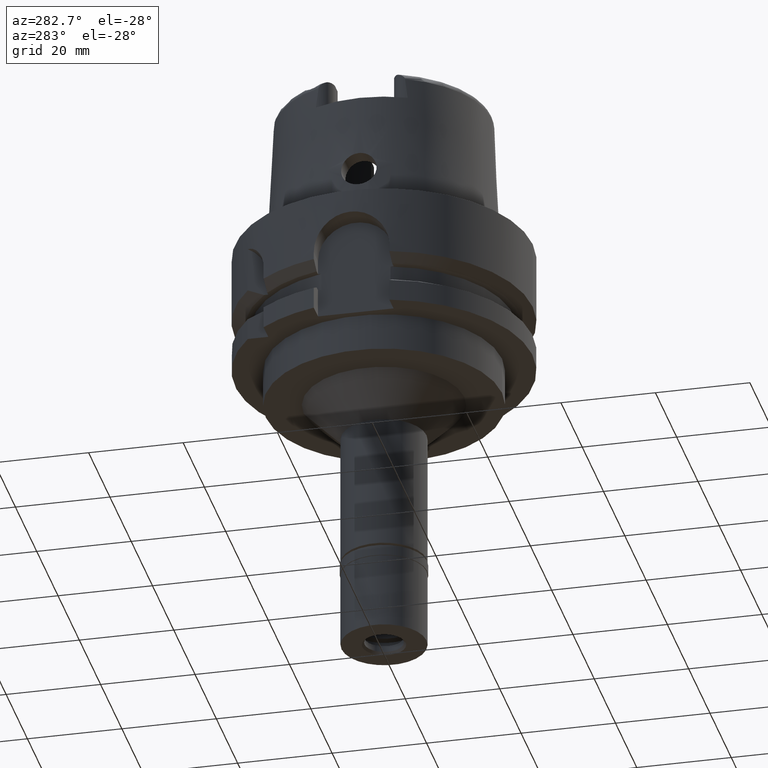
[diagram: clean part render]
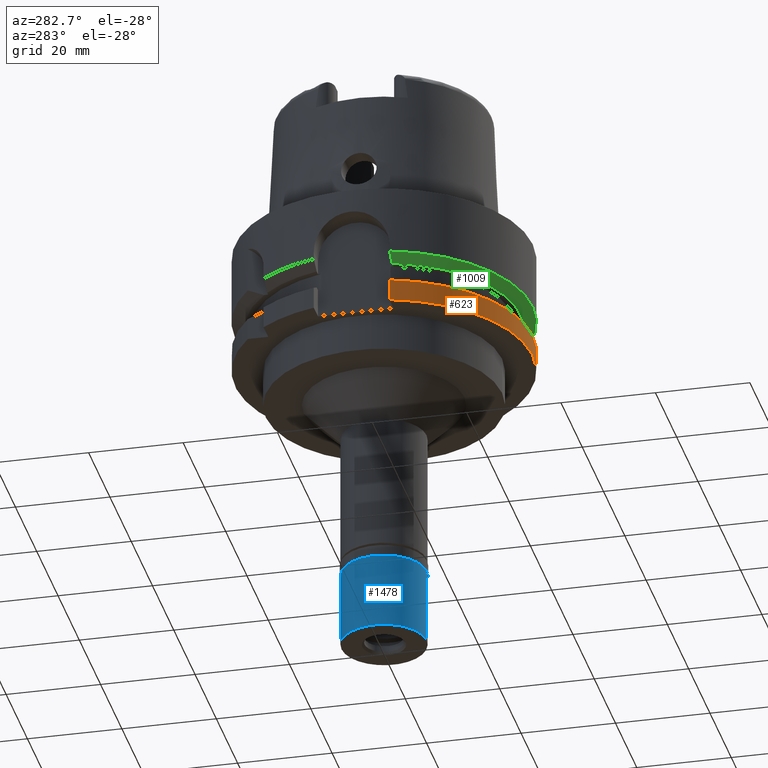
[diagram: same view with three faces highlighted in distinct colors, each labeled with its STEP entity id]
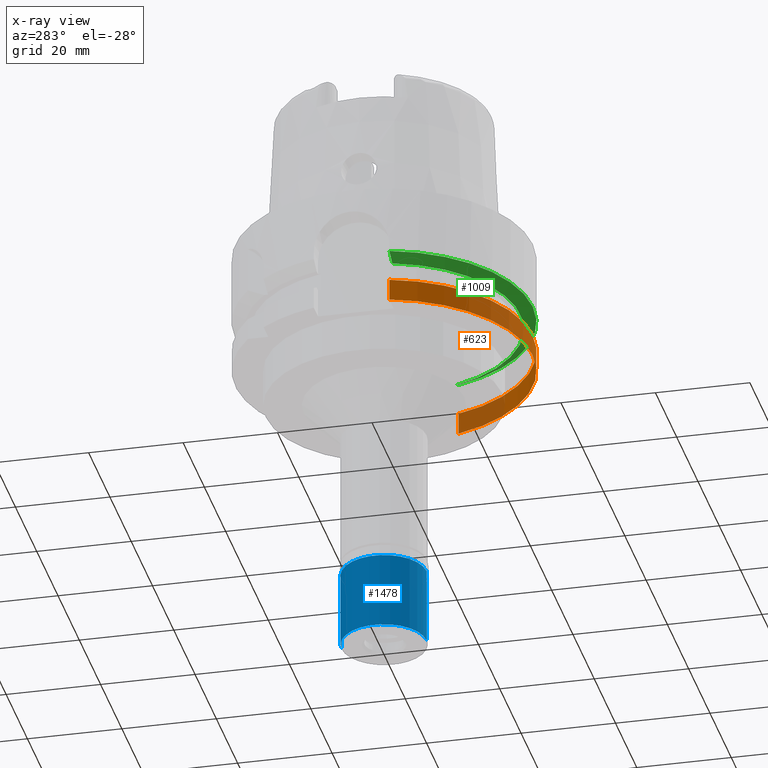
[diagram: x-ray of the same camera — body ghosted, the three highlighted faces saturated]
A machine part, auxiliary view with three faces highlighted in distinct colors.
The next image is the same camera in x-ray (body ghosted, the three faces saturated) — at least one of them is partly hidden behind the body in this view.
Their STEP definitions:

[orange] entity #623 — the highlighted cylindrical surface (partial cylindrical patch) has radius 31.5 mm, axis along (0, 0, 1).
#122 = CARTESIAN_POINT ( 'NONE',  ( -30.46719547316000032, -8.000000000000000000, -26.00000000000000000 ) ) ;
#228 = EDGE_CURVE ( 'NONE', #4368, #484, #4044, .T. ) ;
#404 = DIRECTION ( 'NONE',  ( -9.413870746034984296E-09, -3.157479205832998726E-08, -0.9999999999999994449 ) ) ;
#444 = ORIENTED_EDGE ( 'NONE', *, *, #551, .F. ) ;
#484 = VERTEX_POINT ( 'NONE', #5530 ) ;
#551 = EDGE_CURVE ( 'NONE', #2174, #484, #4652, .T. ) ;
#575 = EDGE_LOOP ( 'NONE', ( #3183, #4124, #444, #2539 ) ) ;
#623 = ADVANCED_FACE ( 'NONE', ( #2973 ), #2182, .T. ) ;
#679 = VECTOR ( 'NONE', #4453, 1000.000000000000114 ) ;
#828 = EDGE_CURVE ( 'NONE', #2174, #4976, #1353, .T. ) ;
#1034 = DIRECTION ( 'NONE',  ( 0.0000000000000000000, 0.0000000000000000000, -1.000000000000000000 ) ) ;
#1119 = CARTESIAN_POINT ( 'NONE',  ( 30.18691769625000276, -9.000000000000000000, -21.37749907476000288 ) ) ;
#1353 = CIRCLE ( 'NONE', #4939, 31.49999999999999645 ) ;
#1602 = AXIS2_PLACEMENT_3D ( 'NONE', #2764, #4026, #3134 ) ;
#1702 = CARTESIAN_POINT ( 'NONE',  ( 30.18691773976000192, -8.999999854045000802, -21.37749789754999696 ) ) ;
#2066 = CARTESIAN_POINT ( 'NONE',  ( 0.0000000000000000000, 0.0000000000000000000, -91.27000000000001023 ) ) ;
#2174 = VERTEX_POINT ( 'NONE', #1119 ) ;
#2182 = CYLINDRICAL_SURFACE ( 'NONE', #2595, 31.50000000000000000 ) ;
#2539 = ORIENTED_EDGE ( 'NONE', *, *, #828, .T. ) ;
#2595 = AXIS2_PLACEMENT_3D ( 'NONE', #2066, #4702, #2998 ) ;
#2707 = CARTESIAN_POINT ( 'NONE',  ( 0.0000000000000000000, 0.0000000000000000000, -21.37749907476000288 ) ) ;
#2764 = CARTESIAN_POINT ( 'NONE',  ( 0.0000000000000000000, 0.0000000000000000000, -26.00000000000000000 ) ) ;
#2973 = FACE_OUTER_BOUND ( 'NONE', #575, .T. ) ;
#2998 = DIRECTION ( 'NONE',  ( 0.0000000000000000000, 1.000000000000000000, 0.0000000000000000000 ) ) ;
#3127 = LINE ( 'NONE', #3560, #679 ) ;
#3134 = DIRECTION ( 'NONE',  ( 0.0000000000000000000, -1.000000000000000000, 0.0000000000000000000 ) ) ;
#3183 = ORIENTED_EDGE ( 'NONE', *, *, #4895, .F. ) ;
#3560 = CARTESIAN_POINT ( 'NONE',  ( -30.46719547316000032, -8.000000000000000000, -26.00000000000000000 ) ) ;
#4026 = DIRECTION ( 'NONE',  ( 0.0000000000000000000, 0.0000000000000000000, 1.000000000000000000 ) ) ;
#4044 = CIRCLE ( 'NONE', #1602, 31.50000000000000000 ) ;
#4124 = ORIENTED_EDGE ( 'NONE', *, *, #228, .T. ) ;
#4242 = VECTOR ( 'NONE', #404, 1000.000000000000114 ) ;
#4368 = VERTEX_POINT ( 'NONE', #122 ) ;
#4453 = DIRECTION ( 'NONE',  ( 2.698236637206970135E-08, -1.027599308913988117E-07, 0.9999999999999943379 ) ) ;
#4652 = LINE ( 'NONE', #1702, #4242 ) ;
#4702 = DIRECTION ( 'NONE',  ( 0.0000000000000000000, 0.0000000000000000000, 1.000000000000000000 ) ) ;
#4774 = CARTESIAN_POINT ( 'NONE',  ( -30.46719534843999710, -8.000000475007999157, -21.37750338698999641 ) ) ;
#4895 = EDGE_CURVE ( 'NONE', #4368, #4976, #3127, .T. ) ;
#4939 = AXIS2_PLACEMENT_3D ( 'NONE', #2707, #1034, #5296 ) ;
#4976 = VERTEX_POINT ( 'NONE', #4774 ) ;
#5296 = DIRECTION ( 'NONE',  ( 0.9583148474999051425, -0.2857142857143015191, 0.0000000000000000000 ) ) ;
#5530 = CARTESIAN_POINT ( 'NONE',  ( 30.18691769625000276, -9.000000000000000000, -26.00000000000000000 ) ) ;

[blue] entity #1478 — the highlighted cylindrical surface (partial cylindrical patch) has radius 9 mm, axis along (0, 0, 1).
#43 = CARTESIAN_POINT ( 'NONE',  ( 0.0000000000000000000, 0.0000000000000000000, -2.299999999999999822 ) ) ;
#223 = DIRECTION ( 'NONE',  ( 0.0000000000000000000, 0.0000000000000000000, 1.000000000000000000 ) ) ;
#539 = CARTESIAN_POINT ( 'NONE',  ( 0.0000000000000000000, 9.000000000000000000, -2.299999999999999822 ) ) ;
#633 = DIRECTION ( 'NONE',  ( 0.0000000000000000000, 1.000000000000000000, 0.0000000000000000000 ) ) ;
#781 = FACE_OUTER_BOUND ( 'NONE', #2742, .T. ) ;
#963 = EDGE_CURVE ( 'NONE', #1828, #3685, #4514, .T. ) ;
#1003 = LINE ( 'NONE', #539, #4352 ) ;
#1233 = ORIENTED_EDGE ( 'NONE', *, *, #3831, .F. ) ;
#1246 = DIRECTION ( 'NONE',  ( 0.0000000000000000000, 0.0000000000000000000, -1.000000000000000000 ) ) ;
#1339 = LINE ( 'NONE', #3072, #3422 ) ;
#1478 = ADVANCED_FACE ( 'NONE', ( #781 ), #3346, .T. ) ;
#1761 = DIRECTION ( 'NONE',  ( 0.0000000000000000000, -1.000000000000000000, 0.0000000000000000000 ) ) ;
#1828 = VERTEX_POINT ( 'NONE', #3082 ) ;
#1860 = VERTEX_POINT ( 'NONE', #5202 ) ;
#2113 = CARTESIAN_POINT ( 'NONE',  ( 0.0000000000000000000, 0.0000000000000000000, -19.42500000000000071 ) ) ;
#2178 = DIRECTION ( 'NONE',  ( 0.0000000000000000000, 0.0000000000000000000, -1.000000000000000000 ) ) ;
#2506 = AXIS2_PLACEMENT_3D ( 'NONE', #4174, #223, #633 ) ;
#2605 = AXIS2_PLACEMENT_3D ( 'NONE', #2113, #5454, #4612 ) ;
#2742 = EDGE_LOOP ( 'NONE', ( #4301, #1233, #5535, #5501 ) ) ;
#3072 = CARTESIAN_POINT ( 'NONE',  ( 0.0000000000000000000, -9.000000000000000000, -2.299999999999999822 ) ) ;
#3082 = CARTESIAN_POINT ( 'NONE',  ( 0.0000000000000000000, 9.000000000000000000, -18.50000000000000000 ) ) ;
#3345 = CIRCLE ( 'NONE', #5505, 9.000000000000000000 ) ;
#3346 = CYLINDRICAL_SURFACE ( 'NONE', #2605, 9.000000000000000000 ) ;
#3422 = VECTOR ( 'NONE', #3583, 1000.000000000000000 ) ;
#3583 = DIRECTION ( 'NONE',  ( 0.0000000000000000000, 0.0000000000000000000, -1.000000000000000000 ) ) ;
#3685 = VERTEX_POINT ( 'NONE', #4699 ) ;
#3721 = EDGE_CURVE ( 'NONE', #4354, #1828, #1003, .T. ) ;
#3831 = EDGE_CURVE ( 'NONE', #1860, #3685, #1339, .T. ) ;
#4174 = CARTESIAN_POINT ( 'NONE',  ( 0.0000000000000000000, 0.0000000000000000000, -18.50000000000000000 ) ) ;
#4301 = ORIENTED_EDGE ( 'NONE', *, *, #963, .T. ) ;
#4352 = VECTOR ( 'NONE', #2178, 1000.000000000000000 ) ;
#4354 = VERTEX_POINT ( 'NONE', #5301 ) ;
#4514 = CIRCLE ( 'NONE', #2506, 9.000000000000000000 ) ;
#4612 = DIRECTION ( 'NONE',  ( 0.0000000000000000000, 1.000000000000000000, 0.0000000000000000000 ) ) ;
#4699 = CARTESIAN_POINT ( 'NONE',  ( 0.0000000000000000000, -9.000000000000000000, -18.50000000000000000 ) ) ;
#5202 = CARTESIAN_POINT ( 'NONE',  ( 0.0000000000000000000, -9.000000000000000000, -2.299999999999999822 ) ) ;
#5301 = CARTESIAN_POINT ( 'NONE',  ( 0.0000000000000000000, 9.000000000000000000, -2.299999999999999822 ) ) ;
#5392 = EDGE_CURVE ( 'NONE', #1860, #4354, #3345, .T. ) ;
#5454 = DIRECTION ( 'NONE',  ( 0.0000000000000000000, 0.0000000000000000000, 1.000000000000000000 ) ) ;
#5501 = ORIENTED_EDGE ( 'NONE', *, *, #3721, .T. ) ;
#5505 = AXIS2_PLACEMENT_3D ( 'NONE', #43, #1246, #1761 ) ;
#5535 = ORIENTED_EDGE ( 'NONE', *, *, #5392, .T. ) ;

[green] entity #1009 — the highlighted conical surface has half-angle 60 deg.
#82 = CARTESIAN_POINT ( 'NONE',  ( -29.55118244830999785, -7.999999797362000287, -15.13368968643999857 ) ) ;
#281 = EDGE_CURVE ( 'NONE', #1130, #2034, #3401, .T. ) ;
#457 = DIRECTION ( 'NONE',  ( 0.0000000000000000000, -1.000000000000000000, 0.0000000000000000000 ) ) ;
#550 = CARTESIAN_POINT ( 'NONE',  ( 27.46036355747000357, -8.999999271202000273, -16.12500000000000000 ) ) ;
#1009 = ADVANCED_FACE ( 'NONE', ( #3209 ), #3412, .T. ) ;
#1017 = CARTESIAN_POINT ( 'NONE',  ( 28.35135727712999909, -9.000000320644000240, -15.63565380695999885 ) ) ;
#1092 = DIRECTION ( 'NONE',  ( 0.0000000000000000000, 1.000000000000000000, 0.0000000000000000000 ) ) ;
#1127 = DIRECTION ( 'NONE',  ( 0.0000000000000000000, 0.0000000000000000000, 1.000000000000000000 ) ) ;
#1130 = VERTEX_POINT ( 'NONE', #4315 ) ;
#1244 = VERTEX_POINT ( 'NONE', #3665 ) ;
#1340 = CARTESIAN_POINT ( 'NONE',  ( -28.65151280223000185, -7.999999996707999550, -15.63453803196999914 ) ) ;
#1394 = CARTESIAN_POINT ( 'NONE',  ( -30.46719534842999977, -8.000000475015998092, -14.62249661310000093 ) ) ;
#1481 = B_SPLINE_CURVE_WITH_KNOTS ( 'NONE', 3,
 ( #2710, #4382, #5195, #1017, #1838, #550 ),
 .UNSPECIFIED., .F., .F.,
 ( 4, 1, 1, 4 ),
 ( 0.0000000000000000000, 0.3333333333333000081, 0.6666666666667000474, 1.000000000000000000 ),
 .UNSPECIFIED. ) ;
#1500 = CARTESIAN_POINT ( 'NONE',  ( 0.0000000000000000000, 0.0000000000000000000, -15.37375046262000033 ) ) ;
#1563 = DIRECTION ( 'NONE',  ( 0.0000000000000000000, -1.000000000000000000, 0.0000000000000000000 ) ) ;
#1666 = ORIENTED_EDGE ( 'NONE', *, *, #5027, .F. ) ;
#1800 = CARTESIAN_POINT ( 'NONE',  ( -30.16029589048000048, -8.000000475015998092, -14.79387553791999999 ) ) ;
#1831 = CARTESIAN_POINT ( 'NONE',  ( -27.76816325293000176, -8.000000142773998846, -16.12500000000000000 ) ) ;
#1838 = CARTESIAN_POINT ( 'NONE',  ( 27.75565632109000092, -8.999999271202000273, -15.96299194532000243 ) ) ;
#1842 = CARTESIAN_POINT ( 'NONE',  ( 27.46036355747000357, -8.999999271202000273, -16.12500000000000000 ) ) ;
#1902 = EDGE_CURVE ( 'NONE', #2044, #3991, #3300, .T. ) ;
#2033 = CARTESIAN_POINT ( 'NONE',  ( -30.46719534842999977, -8.000000475015998092, -14.62249661310000093 ) ) ;
#2034 = VERTEX_POINT ( 'NONE', #1842 ) ;
#2044 = VERTEX_POINT ( 'NONE', #2033 ) ;
#2127 = ORIENTED_EDGE ( 'NONE', *, *, #3663, .F. ) ;
#2139 = ORIENTED_EDGE ( 'NONE', *, *, #4429, .F. ) ;
#2554 = DIRECTION ( 'NONE',  ( 0.0000000000000000000, 0.0000000000000000000, 1.000000000000000000 ) ) ;
#2582 = CARTESIAN_POINT ( 'NONE',  ( 0.0000000000000000000, 0.0000000000000000000, -14.62250092523999889 ) ) ;
#2593 = DIRECTION ( 'NONE',  ( 0.0000000000000000000, 0.0000000000000000000, 1.000000000000000000 ) ) ;
#2594 = CARTESIAN_POINT ( 'NONE',  ( -28.06106258786000041, -8.000000142773998846, -15.96250378841000028 ) ) ;
#2628 = B_SPLINE_CURVE_WITH_KNOTS ( 'NONE', 3,
 ( #1831, #2594, #1340, #82, #1800, #1394 ),
 .UNSPECIFIED., .F., .F.,
 ( 4, 1, 1, 4 ),
 ( 0.0000000000000000000, 0.3333333333333000081, 0.6666666666667000474, 1.000000000000000000 ),
 .UNSPECIFIED. ) ;
#2681 = EDGE_LOOP ( 'NONE', ( #1666, #4116, #2139, #2127, #2984 ) ) ;
#2710 = CARTESIAN_POINT ( 'NONE',  ( 30.18691773976999926, -8.999999854034999913, -14.62250210248000037 ) ) ;
#2874 = AXIS2_PLACEMENT_3D ( 'NONE', #1500, #4510, #1092 ) ;
#2984 = ORIENTED_EDGE ( 'NONE', *, *, #1902, .F. ) ;
#3209 = FACE_OUTER_BOUND ( 'NONE', #2681, .T. ) ;
#3300 = CIRCLE ( 'NONE', #5453, 31.50000000000000000 ) ;
#3401 = CIRCLE ( 'NONE', #3953, 28.89759526419000224 ) ;
#3412 = CONICAL_SURFACE ( 'NONE', #2874, 30.19879763209999979, 1.047197551196400456 ) ;
#3663 = EDGE_CURVE ( 'NONE', #3991, #1244, #4166, .T. ) ;
#3665 = CARTESIAN_POINT ( 'NONE',  ( 30.18691773976999926, -8.999999854034999913, -14.62250210248000037 ) ) ;
#3739 = CARTESIAN_POINT ( 'NONE',  ( 0.0000000000000000000, 0.0000000000000000000, -16.12500000000000000 ) ) ;
#3953 = AXIS2_PLACEMENT_3D ( 'NONE', #3739, #1127, #1563 ) ;
#3991 = VERTEX_POINT ( 'NONE', #4099 ) ;
#4099 = CARTESIAN_POINT ( 'NONE',  ( 0.0000000000000000000, -31.50000000000000000, -14.62250092523999889 ) ) ;
#4116 = ORIENTED_EDGE ( 'NONE', *, *, #281, .T. ) ;
#4166 = CIRCLE ( 'NONE', #5043, 31.50000000000000000 ) ;
#4315 = CARTESIAN_POINT ( 'NONE',  ( -27.76816325293000176, -8.000000142773998846, -16.12500000000000000 ) ) ;
#4382 = CARTESIAN_POINT ( 'NONE',  ( 29.87630897506999617, -8.999999854034999913, -14.79435675648999826 ) ) ;
#4429 = EDGE_CURVE ( 'NONE', #1244, #2034, #1481, .T. ) ;
#4510 = DIRECTION ( 'NONE',  ( 0.0000000000000000000, 0.0000000000000000000, 1.000000000000000000 ) ) ;
#4744 = CARTESIAN_POINT ( 'NONE',  ( 0.0000000000000000000, 0.0000000000000000000, -14.62250092523999889 ) ) ;
#5027 = EDGE_CURVE ( 'NONE', #1130, #2044, #2628, .T. ) ;
#5043 = AXIS2_PLACEMENT_3D ( 'NONE', #4744, #2593, #457 ) ;
#5195 = CARTESIAN_POINT ( 'NONE',  ( 29.26020086735999826, -8.999999970943999728, -15.13480538179000057 ) ) ;
#5248 = DIRECTION ( 'NONE',  ( -0.9672125547036138915, -0.2539682539683034701, 0.0000000000000000000 ) ) ;
#5453 = AXIS2_PLACEMENT_3D ( 'NONE', #2582, #2554, #5248 ) ;